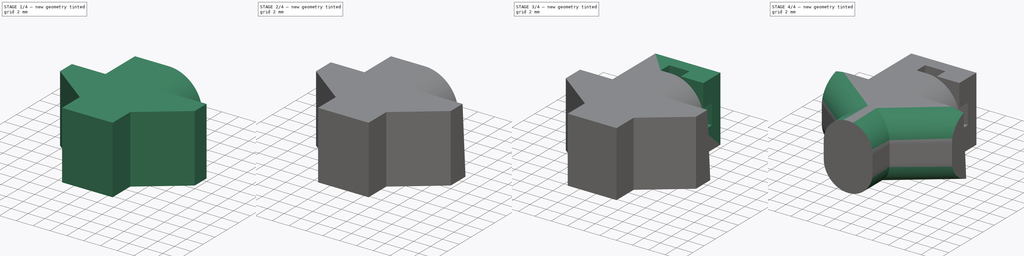
[diagram: build sequence overview — one tinted view per stage of 4, left to right]
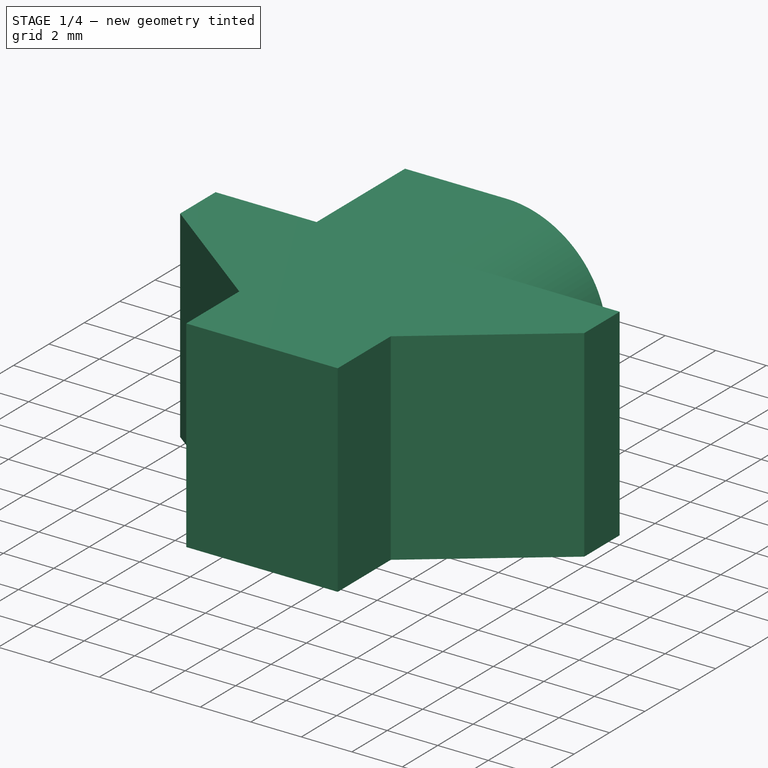
[diagram: stage 1 of 4 — iso view after this stage's code; geometry added in this stage tinted green]
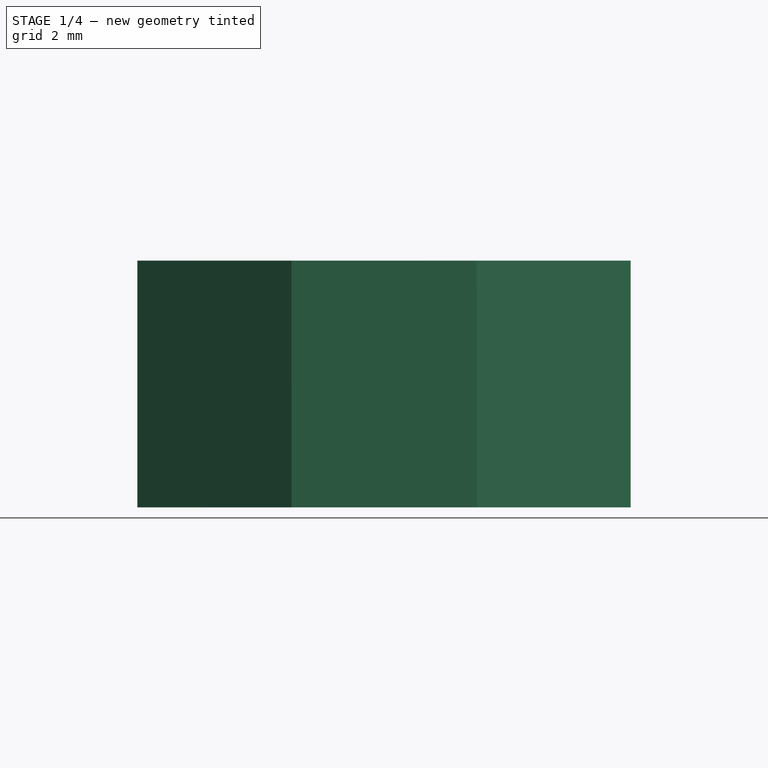
[diagram: stage 1 of 4 — front view after this stage's code; geometry added in this stage tinted green]
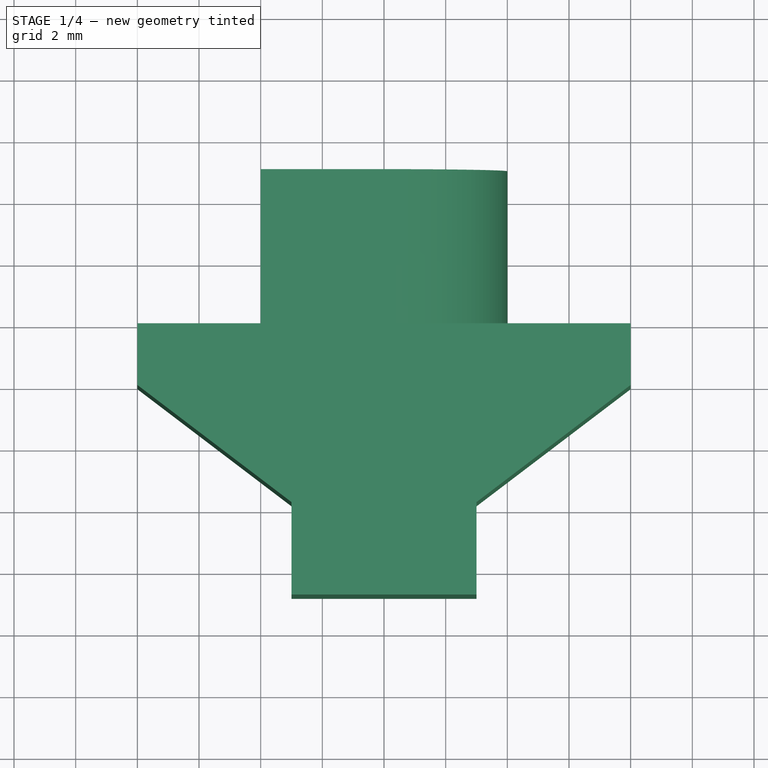
[diagram: stage 1 of 4 — top view after this stage's code; geometry added in this stage tinted green]
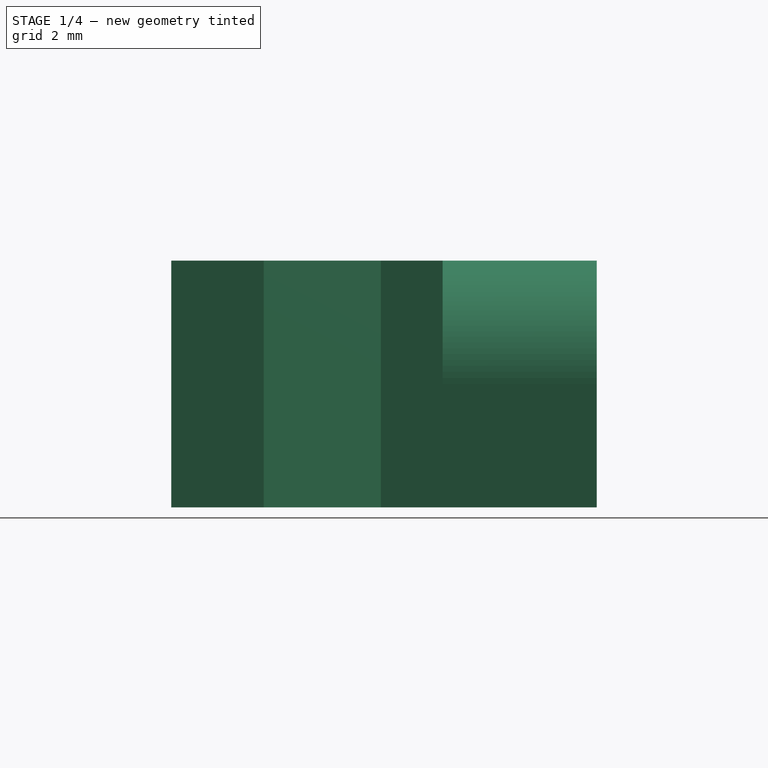
[diagram: stage 1 of 4 — right view after this stage's code; geometry added in this stage tinted green]
FCSTD DOCUMENT  (FreeCAD 1.0R39109 (Git))
Label: zip_tie_2x1_mm_to_4040_profile
License: All rights reserved
LicenseURL: https://en.wikipedia.org/wiki/All_rights_reserved
objects: Sketcher::SketchObject×7, PartDesign::Pad×5, PartDesign::Pocket×2, PartDesign::Fillet×2, PartDesign::Body×1
note: 42 computed .brp shape members not serialized (recipe doc carries the construction recipe); baked Part::Feature solids carry a one-line shape summary decoded from their .brp

FEATURE [Sketcher::SketchObject] Sketch
  ArcFitTolerance = 1e-06
  AttachmentSupport = -> [XY_Plane]
  FullyConstrained = true
  MakeInternals = false
  MapMode = 5
  sketch-geometry (23):
    g0: LineSegment [constr] StartX=-4.2 StartY=-10 StartZ=0 EndX=4.2 EndY=-10 EndZ=0
    g1: LineSegment [constr] StartX=-4.2 StartY=-10 StartZ=0 EndX=-14.2 EndY=0 EndZ=0
    g2: LineSegment [constr] StartX=4.2 StartY=-10 StartZ=0 EndX=14.2 EndY=0 EndZ=0
    g3: LineSegment [constr] StartX=-10 StartY=0 StartZ=0 EndX=-10 EndY=-4.2 EndZ=0
    g4: LineSegment [constr] StartX=10 StartY=-4.2 StartZ=0 EndX=10 EndY=0 EndZ=0
    g5: LineSegment [constr] StartX=-10 StartY=0 StartZ=0 EndX=-4.2 EndY=0 EndZ=0
    g6: LineSegment [constr] StartX=-4.2 StartY=4 StartZ=0 EndX=-14.2 EndY=4 EndZ=0
    g7: LineSegment [constr] StartX=-14.2 StartY=4 StartZ=0 EndX=-14.2 EndY=0 EndZ=0
    g8: LineSegment [constr] StartX=10 StartY=0 StartZ=0 EndX=4.20001 EndY=0 EndZ=0
    g9: LineSegment [constr] StartX=4.20001 StartY=4 StartZ=0 EndX=14.2 EndY=4 EndZ=0
    g10: LineSegment [constr] StartX=14.2 StartY=4 StartZ=0 EndX=14.2 EndY=0 EndZ=0
    g11: LineSegment [constr] StartX=-4.2 StartY=0 StartZ=0 EndX=-4.2 EndY=4 EndZ=0
    g12: LineSegment [constr] StartX=4.20001 StartY=0 StartZ=0 EndX=4.20001 EndY=4 EndZ=0
    g13: GeomPoint [constr] X=0 Y=-10 Z=0
    g14: LineSegment StartX=-8 StartY=0 StartZ=0 EndX=8 EndY=0 EndZ=0
    g15: GeomPoint X=0 Y=0 Z=0
    g16: LineSegment StartX=-3 StartY=-8.8 StartZ=0 EndX=3 EndY=-8.8 EndZ=0
    g17: LineSegment StartX=-3 StartY=-8.8 StartZ=0 EndX=-3 EndY=-5.8 EndZ=0
    g18: LineSegment StartX=3 StartY=-8.8 StartZ=0 EndX=3 EndY=-5.8 EndZ=0
    g19: LineSegment StartX=-8 StartY=0 StartZ=0 EndX=-8 EndY=-2 EndZ=0
    g20: LineSegment StartX=-8 StartY=-2 StartZ=0 EndX=-3 EndY=-5.8 EndZ=0
    g21: LineSegment StartX=3 StartY=-5.8 StartZ=0 EndX=8 EndY=-2 EndZ=0
    g22: LineSegment StartX=8 StartY=-2 StartZ=0 EndX=8 EndY=0 EndZ=0
  constraints (65):
    c: Horizontal(g0)
    c: Angle(g-1,g1) = 2.35619
    c: PointOnObject(g1,g-1)
    c: Angle(g-1,g2) = 0.785398
    c: Coincident(g2,g0)
    c: PointOnObject(g2,g-1)
    c: PointOnObject(g3,g-1)
    c: PointOnObject(g3,g1)
    c: Vertical(g3)
    c: PointOnObject(g4,g2)
    c: PointOnObject(g4,g-1)
    c: Vertical(g4)
    c: DistanceX(g3,g4) = 20
    c: Equal(g4,g3)
    c: Coincident(g5,g3)
    c: Horizontal(g6)
    c: Coincident(g7,g6)
    c: Coincident(g7,g1)
    c: Vertical(g7)
    c: Coincident(g8,g4)
    c: Horizontal(g9)
    c: Coincident(g10,g2)
    c: Vertical(g10)
    c: DistanceY(g7,g7) = 4
    c: Equal(g10,g7)
    c: Coincident(g9,g10)
    c: Equal(g6,g9)
    c: DistanceX(g0,g0) = 8.4
    c: Coincident(g11,g5)
    c: Coincident(g11,g6)
    c: Vertical(g11)
    c: Coincident(g12,g8)
    c: Coincident(g12,g9)
    c: Vertical(g12)
    c: Coincident(g1,g0)
    c: Symmetric(g0,g0,g13)
    c: PointOnObject(g13,g-2)
    c: DistanceY(g0,g9) = 14
    c: DistanceX(g5,g0) = 0
    c: Horizontal(g5)
    c: Horizontal(g8)
    c: DistanceX(g14,g14) = 16
    c: Horizontal(g14)
    c: Symmetric(g14,g14,g15)
    c: Coincident(g15,g-1)
    c: Horizontal(g16)
    c: Coincident(g17,g16)
    c: Vertical(g17)
    c: Coincident(g18,g16)
    c: Vertical(g18)
    c: DistanceY(g16) = -8.8
    c: Equal(g17,g18)
    c: DistanceX(g16,g16) = 6
    c: DistanceY(g17,g17) = 3
    c: Coincident(g19,g14)
    c: Vertical(g19)
    c: Coincident(g20,g19)
    c: Coincident(g20,g17)
    c: Coincident(g21,g18)
    c: Coincident(g22,g21)
    c: Coincident(g22,g14)
    c: Vertical(g22)
    c: Equal(g21,g20)
    c: Equal(g19,g22)
    c: DistanceY(g19,g19) = 2
FEATURE [PartDesign::Pad] Pad
  Direction = (0,0,1)
  Length = 8
  Length2 = 10
  Profile = -> Sketch
  ReferenceAxis = -> Sketch [N_Axis]
  Refine = true
  Suppressed = false
  Type = 0
FEATURE [Sketcher::SketchObject] Sketch001
  ArcFitTolerance = 1e-06
  AttachmentSupport = -> [Pad]
  FullyConstrained = true
  MakeInternals = false
  MapMode = 5
  Placement = pos=(0,0,0) rot=(0,0.707107,0.707107;3.14159rad)
  sketch-geometry (7):
    g0: Circle [constr] CenterX=0 CenterY=4 CenterZ=0 NormalX=0 NormalY=0 NormalZ=1 AngleXU=0 Radius=4
    g1: LineSegment StartX=-4 StartY=4 StartZ=0 EndX=-4 EndY=0 EndZ=0
    g2: LineSegment StartX=4 StartY=4 StartZ=0 EndX=4 EndY=8 EndZ=0
    g3: LineSegment StartX=-4 StartY=0 StartZ=0 EndX=-9e-16 EndY=0 EndZ=0
    g4: LineSegment StartX=4 StartY=8 StartZ=0 EndX=4e-16 EndY=8 EndZ=0
    g5: ArcOfCircle CenterX=0 CenterY=4 CenterZ=0 NormalX=0 NormalY=0 NormalZ=1 AngleXU=0 Radius=4 StartAngle=4.71239 EndAngle=6.28319
    g6: ArcOfCircle CenterX=0 CenterY=4 CenterZ=0 NormalX=0 NormalY=0 NormalZ=1 AngleXU=0 Radius=4 StartAngle=1.5708 EndAngle=3.14159
  constraints (17):
    c: Diameter(g0) = 8
    c: PointOnObject(g0,g-2)
    c: DistanceY(g0) = 4
    c: PointOnObject(g1,g-1)
    c: Vertical(g1)
    c: Vertical(g2)
    c: Coincident(g3,g1)
    c: Coincident(g3,g-1)
    c: Coincident(g4,g2)
    c: Tangent(g4,g0) = -1.5708
    c: Horizontal(g4)
    c: Coincident(g5,g0)
    c: Coincident(g5,g3)
    c: Tangent(g5,g2) = -1.5708
    c: Coincident(g6,g4)
    c: Coincident(g6,g0)
    c: Tangent(g6,g1) = -1.5708
FEATURE [PartDesign::Pad] Pad001
  BaseFeature = -> Pad
  Direction = (0,1,-2e-16)
  Length = 5
  Length2 = 10
  Profile = -> Sketch001
  ReferenceAxis = -> Sketch001 [N_Axis]
  Refine = true
  Suppressed = false
  Type = 0
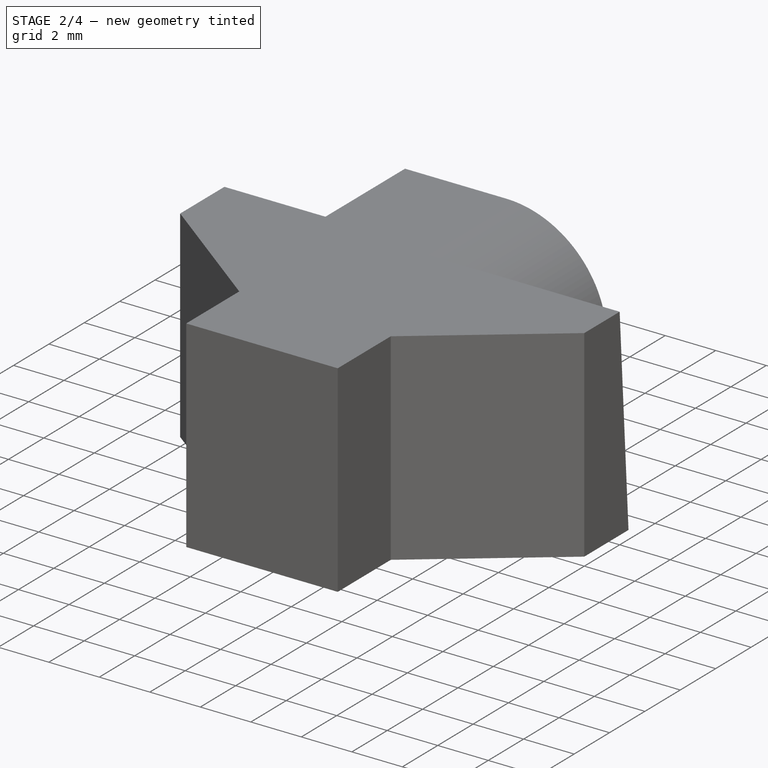
[diagram: stage 2 of 4 — iso view after this stage's code; geometry added in this stage tinted green]
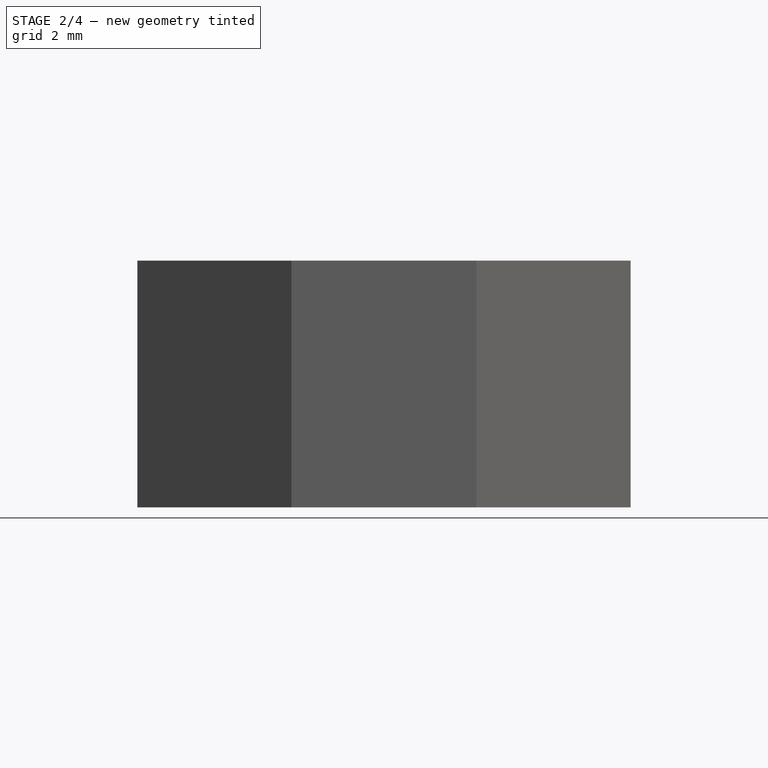
[diagram: stage 2 of 4 — front view after this stage's code; geometry added in this stage tinted green]
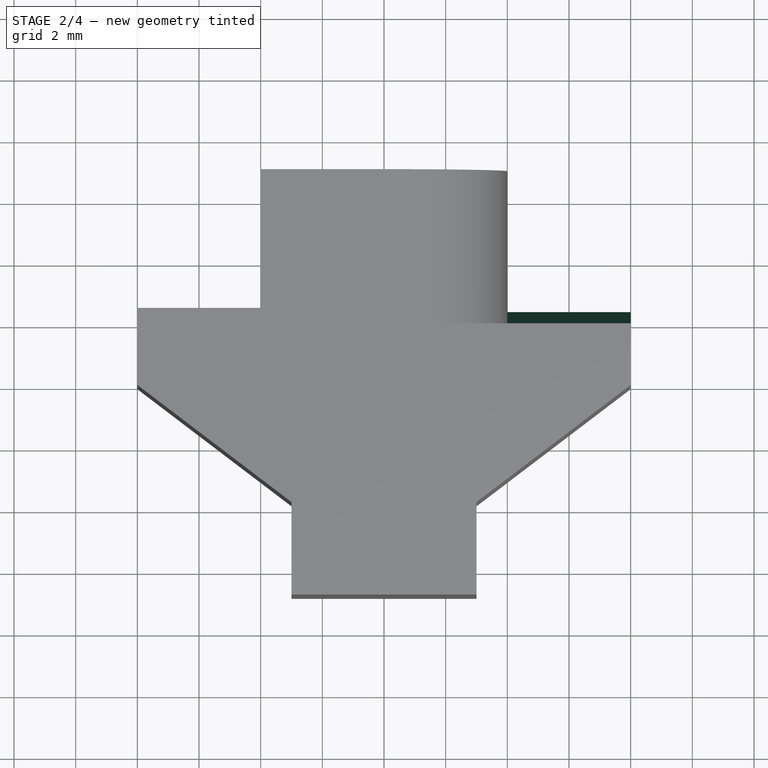
[diagram: stage 2 of 4 — top view after this stage's code; geometry added in this stage tinted green]
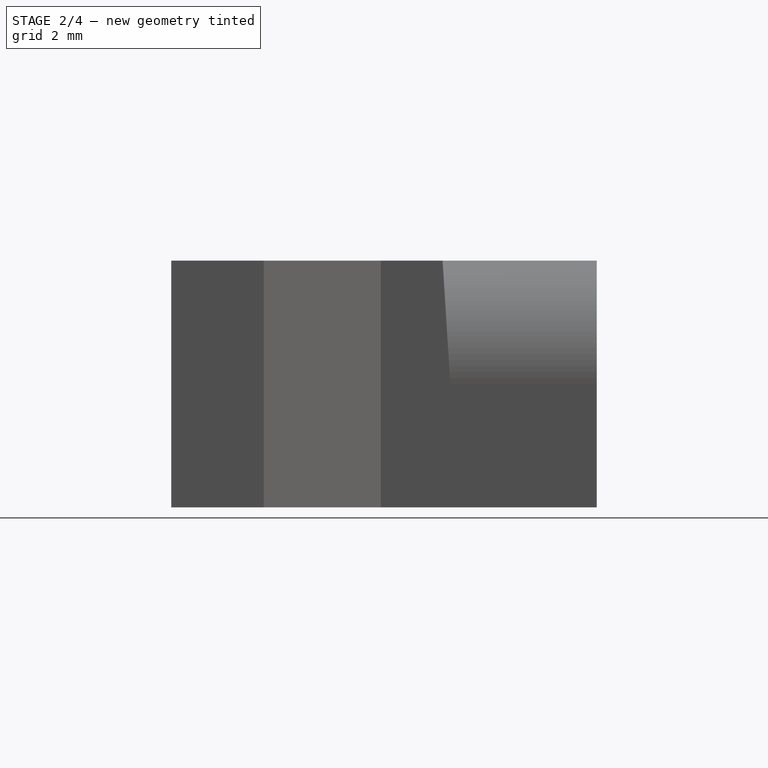
[diagram: stage 2 of 4 — right view after this stage's code; geometry added in this stage tinted green]
FEATURE [Sketcher::SketchObject] Sketch002
  ArcFitTolerance = 1e-06
  AttachmentSupport = -> [Pad001]
  FullyConstrained = true
  MakeInternals = false
  MapMode = 5
  Placement = pos=(4,0,0) rot=(0.57735,0.57735,0.57735;2.0944rad)
  sketch-geometry (3):
    g0: LineSegment StartX=0 StartY=0 StartZ=0 EndX=0 EndY=8 EndZ=0
    g1: LineSegment StartX=0 StartY=8 StartZ=0 EndX=0.5 EndY=0 EndZ=0
    g2: LineSegment StartX=0.5 StartY=0 StartZ=0 EndX=0 EndY=0 EndZ=0
  constraints (8):
    c: Coincident(g0,g-1)
    c: PointOnObject(g0,g-2)
    c: Coincident(g1,g0)
    c: PointOnObject(g1,g-1)
    c: Coincident(g2,g1)
    c: Coincident(g2,g0)
    c: DistanceX(g2,g2) = 0.5
    c: DistanceY(g0) = 8
FEATURE [PartDesign::Pad] Pad002
  BaseFeature = -> Pad001
  Direction = (1,0,0)
  Length = 4
  Length2 = 10
  Profile = -> Sketch002
  ReferenceAxis = -> Sketch002 [N_Axis]
  Refine = true
  Suppressed = false
  Type = 0
FEATURE [Sketcher::SketchObject] Sketch003
  ArcFitTolerance = 1e-06
  AttachmentSupport = -> [Pad002]
  FullyConstrained = true
  MakeInternals = false
  MapMode = 5
  Placement = pos=(-4,0,0) rot=(0.57735,-0.57735,-0.57735;2.0944rad)
  sketch-geometry (3):
    g0: LineSegment StartX=0 StartY=0 StartZ=0 EndX=0 EndY=8 EndZ=0
    g1: LineSegment StartX=0 StartY=8 StartZ=0 EndX=-0.5 EndY=8 EndZ=0
    g2: LineSegment StartX=-0.5 StartY=8 StartZ=0 EndX=0 EndY=0 EndZ=0
  constraints (8):
    c: Coincident(g0,g-1)
    c: PointOnObject(g0,g-2)
    c: Distance(g1) = 0.5
    c: Coincident(g1,g0)
    c: Horizontal(g1)
    c: Coincident(g2,g1)
    c: Coincident(g2,g0)
    c: DistanceY(g0) = 8
FEATURE [PartDesign::Pad] Pad003
  BaseFeature = -> Pad002
  Direction = (-1,0,0)
  Length = 4
  Length2 = 10
  Profile = -> Sketch003
  ReferenceAxis = -> Sketch003 [N_Axis]
  Refine = true
  Suppressed = false
  Type = 0
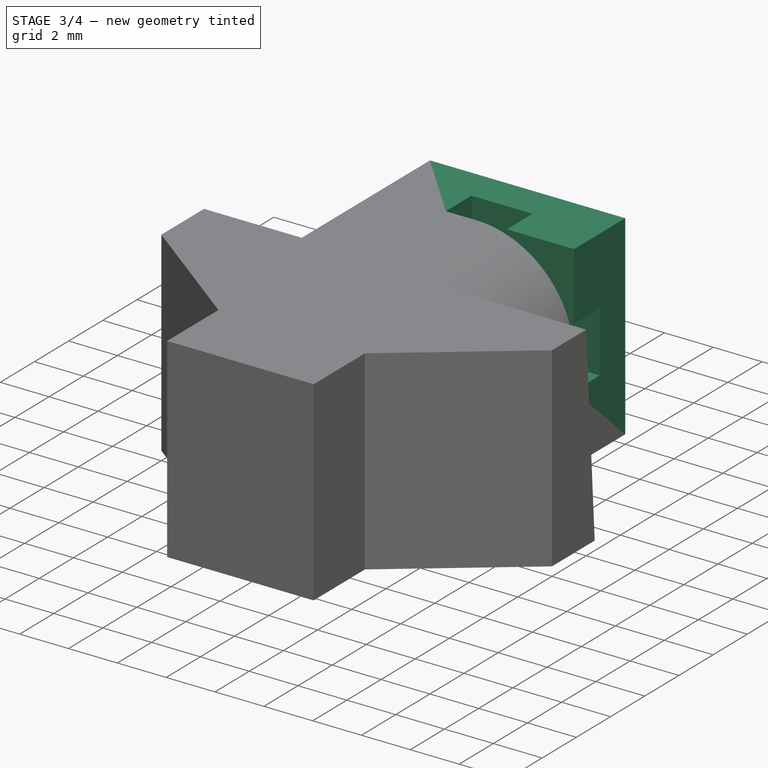
[diagram: stage 3 of 4 — iso view after this stage's code; geometry added in this stage tinted green]
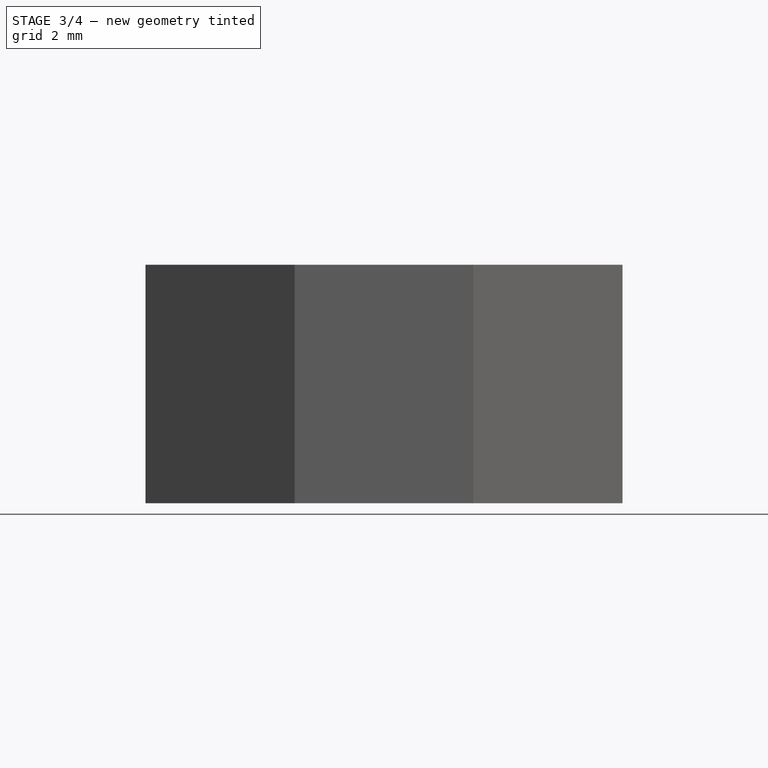
[diagram: stage 3 of 4 — front view after this stage's code; geometry added in this stage tinted green]
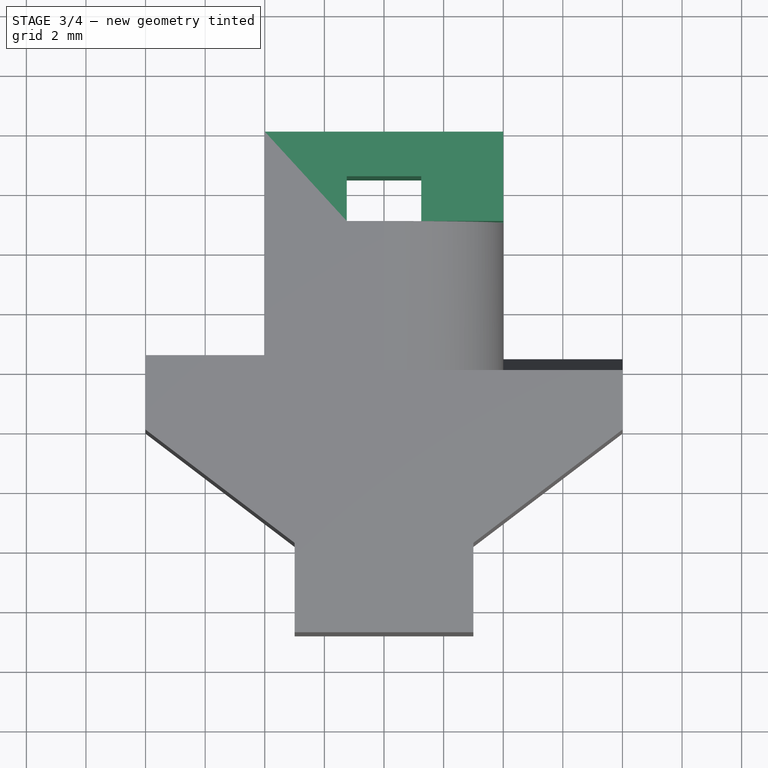
[diagram: stage 3 of 4 — top view after this stage's code; geometry added in this stage tinted green]
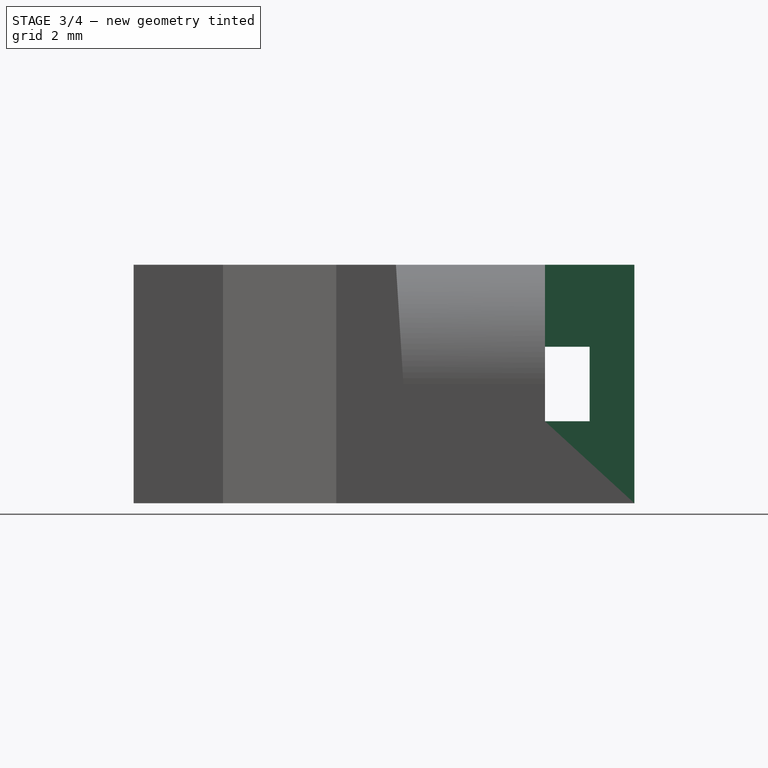
[diagram: stage 3 of 4 — right view after this stage's code; geometry added in this stage tinted green]
FEATURE [Sketcher::SketchObject] Sketch004
  ArcFitTolerance = 1e-06
  AttachmentSupport = -> [Pad003]
  FullyConstrained = true
  MakeInternals = false
  MapMode = 5
  Placement = pos=(0,5,0) rot=(0,0.707107,0.707107;3.14159rad)
  sketch-geometry (4):
    g0: LineSegment StartX=-4 StartY=8 StartZ=0 EndX=-4 EndY=0 EndZ=0
    g1: LineSegment StartX=-4 StartY=0 StartZ=0 EndX=4 EndY=0 EndZ=0
    g2: LineSegment StartX=4 StartY=0 StartZ=0 EndX=4 EndY=8 EndZ=0
    g3: LineSegment StartX=4 StartY=8 StartZ=0 EndX=-4 EndY=8 EndZ=0
  constraints (11):
    c: Coincident(g0,g1)
    c: Coincident(g1,g2)
    c: Coincident(g2,g3)
    c: Coincident(g3,g0)
    c: Vertical(g0)
    c: Vertical(g2)
    c: Horizontal(g1)
    c: Horizontal(g3)
    c: Equal(g3,g2)
    c: DistanceX(g3,g3) = 8
    c: Symmetric(g1,g1,g-1)
FEATURE [PartDesign::Pad] Pad004
  BaseFeature = -> Pad003
  Direction = (0,1,-2e-16)
  Length = 3
  Length2 = 10
  Profile = -> Sketch004
  ReferenceAxis = -> Sketch004 [N_Axis]
  Refine = true
  Suppressed = false
  Type = 0
FEATURE [Sketcher::SketchObject] Sketch005
  ArcFitTolerance = 1e-06
  AttachmentSupport = -> [Pad004]
  FullyConstrained = true
  MakeInternals = false
  MapMode = 5
  Placement = pos=(0,0,8) rot=(0,0,1;0rad)
  sketch-geometry (5):
    g0: LineSegment StartX=-1.25 StartY=5 StartZ=0 EndX=1.25 EndY=5 EndZ=0
    g1: LineSegment StartX=1.25 StartY=5 StartZ=0 EndX=1.25 EndY=6.5 EndZ=0
    g2: LineSegment StartX=1.25 StartY=6.5 StartZ=0 EndX=-1.25 EndY=6.5 EndZ=0
    g3: LineSegment StartX=-1.25 StartY=6.5 StartZ=0 EndX=-1.25 EndY=5 EndZ=0
    g4: GeomPoint X=0 Y=5 Z=0
  constraints (13):
    c: Coincident(g0,g1)
    c: Coincident(g1,g2)
    c: Coincident(g2,g3)
    c: Coincident(g3,g0)
    c: Horizontal(g0)
    c: Horizontal(g2)
    c: Vertical(g1)
    c: Vertical(g3)
    c: Distance(g1,g3) = 2.5
    c: Distance(g0,g2) = 1.5
    c: Symmetric(g0,g0,g4)
    c: PointOnObject(g4,g-2)
    c: DistanceY(g4) = 5
FEATURE [PartDesign::Pocket] Pocket
  BaseFeature = -> Pad004
  Direction = (0,0,-1)
  Length = 5
  Length2 = 5
  Profile = -> Sketch005
  ReferenceAxis = -> Sketch005 [N_Axis]
  Refine = true
  Suppressed = false
  Type = 1
FEATURE [Sketcher::SketchObject] Sketch006
  ArcFitTolerance = 1e-06
  AttachmentSupport = -> [Pocket]
  FullyConstrained = true
  MakeInternals = false
  MapMode = 5
  Placement = pos=(4,0,0) rot=(0.57735,0.57735,0.57735;2.0944rad)
  sketch-geometry (5):
    g0: LineSegment StartX=5 StartY=5.25 StartZ=0 EndX=5 EndY=2.75 EndZ=0
    g1: LineSegment StartX=5 StartY=2.75 StartZ=0 EndX=6.5 EndY=2.75 EndZ=0
    g2: LineSegment StartX=6.5 StartY=2.75 StartZ=0 EndX=6.5 EndY=5.25 EndZ=0
    g3: LineSegment StartX=6.5 StartY=5.25 StartZ=0 EndX=5 EndY=5.25 EndZ=0
    g4: GeomPoint X=5 Y=4 Z=0
  constraints (13):
    c: Coincident(g0,g1)
    c: Coincident(g1,g2)
    c: Coincident(g2,g3)
    c: Coincident(g3,g0)
    c: Vertical(g0)
    c: Vertical(g2)
    c: Horizontal(g1)
    c: Horizontal(g3)
    c: Distance(g0,g2) = 1.5
    c: Distance(g1,g3) = 2.5
    c: DistanceX(g0) = 5
    c: Symmetric(g0,g0,g4)
    c: DistanceY(g4) = 4
FEATURE [PartDesign::Pocket] Pocket001
  BaseFeature = -> Pocket
  Direction = (-1,0,0)
  Length = 5
  Length2 = 5
  Profile = -> Sketch006
  ReferenceAxis = -> Sketch006 [N_Axis]
  Refine = true
  Suppressed = false
  Type = 1
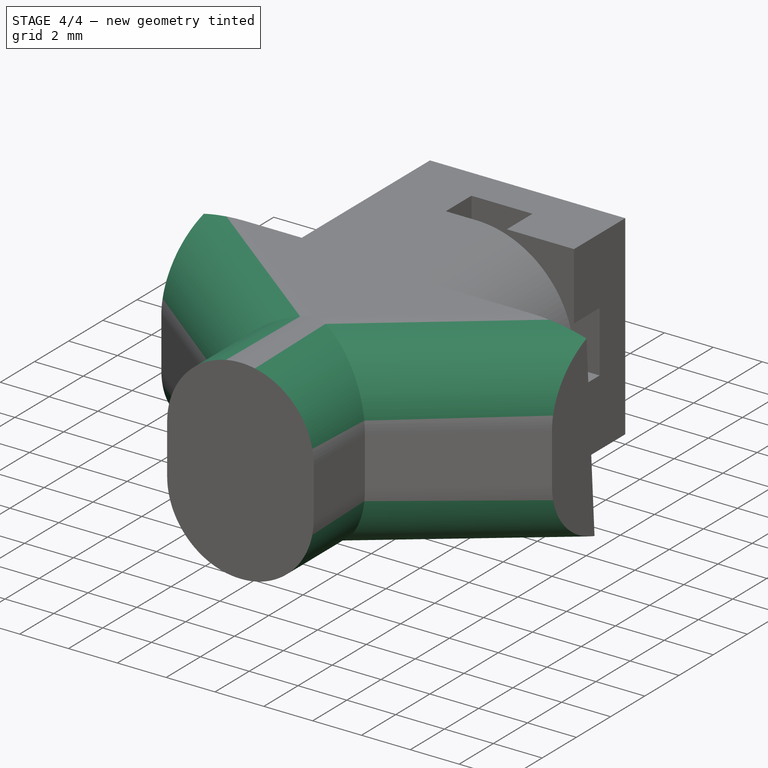
[diagram: stage 4 of 4 — iso view after this stage's code; geometry added in this stage tinted green]
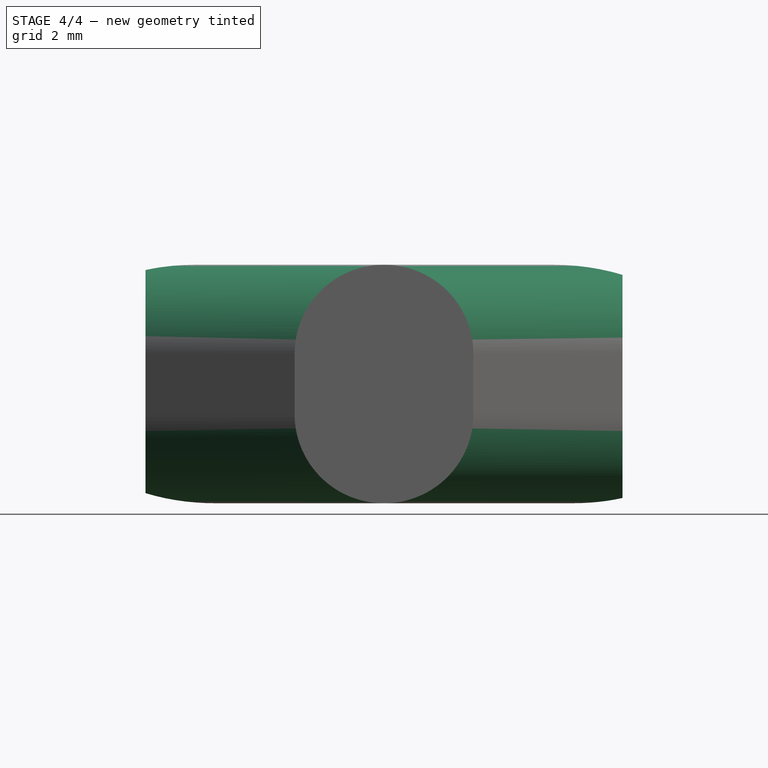
[diagram: stage 4 of 4 — front view after this stage's code; geometry added in this stage tinted green]
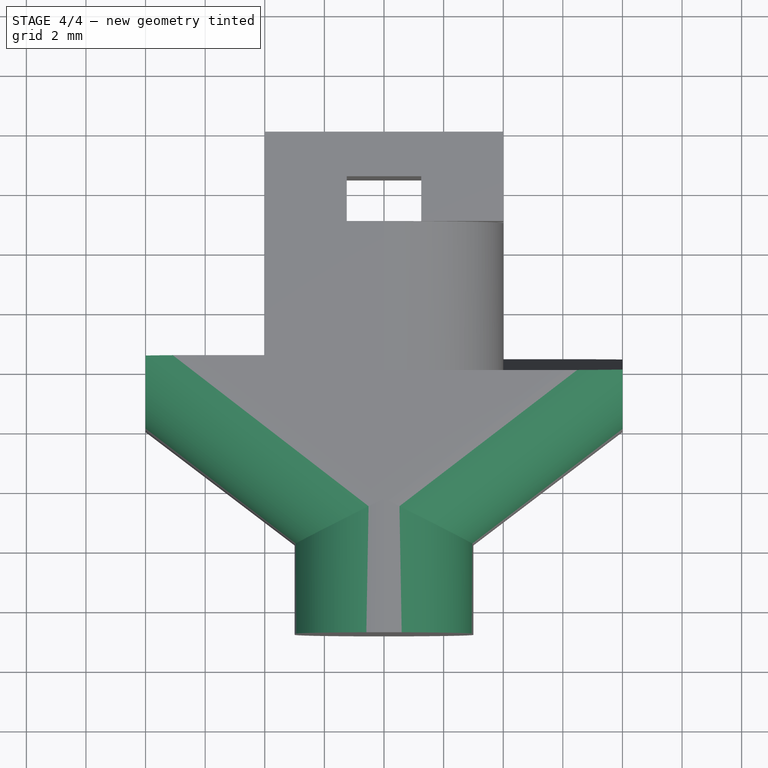
[diagram: stage 4 of 4 — top view after this stage's code; geometry added in this stage tinted green]
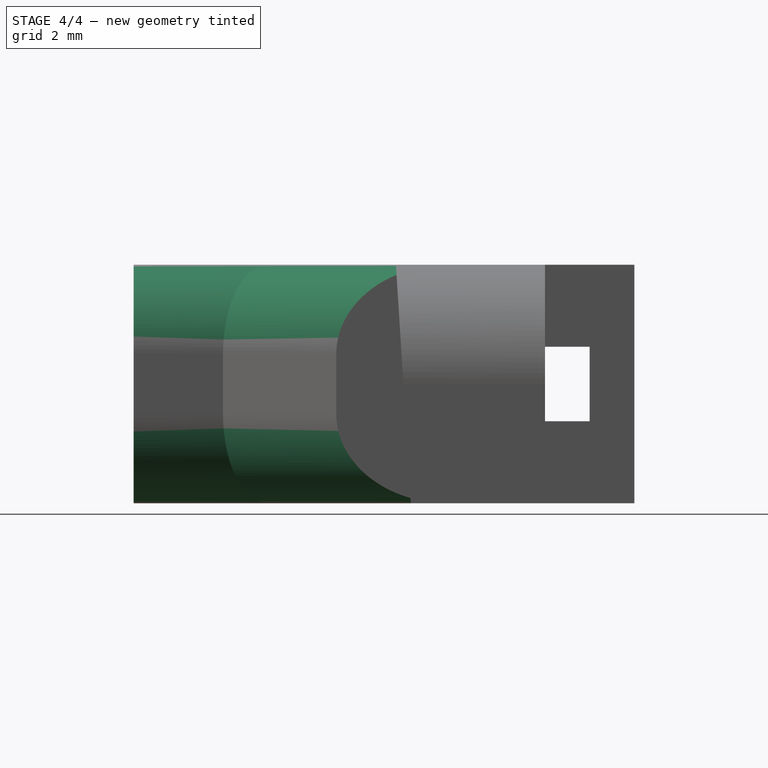
[diagram: stage 4 of 4 — right view after this stage's code; geometry added in this stage tinted green]
FEATURE [PartDesign::Fillet] Fillet
  Base = -> Pocket001 [Edge21,Edge19,Edge68,Edge64]
  BaseFeature = -> Pocket001
  Radius = 2.99
  Refine = true
  SupportTransform = false
  Suppressed = false
  UseAllEdges = false
FEATURE [PartDesign::Fillet] Fillet001
  Base = -> Fillet [Edge6,Edge7,Edge36,Edge41]
  BaseFeature = -> Fillet
  Radius = 2.99
  Refine = true
  SupportTransform = false
  Suppressed = false
  UseAllEdges = false
FEATURE [PartDesign::Body] Body
  AllowCompound = false
  Group = -> [Sketch,Pad,Sketch001,Pad001,Sketch002,Pad002,Sketch003,Pad003,Sketch004,Pad004,Sketch005,Pocket,Sketch006,Pocket001,Fillet,Fillet001]
  Origin = -> Origin
  Tip = -> Fillet001
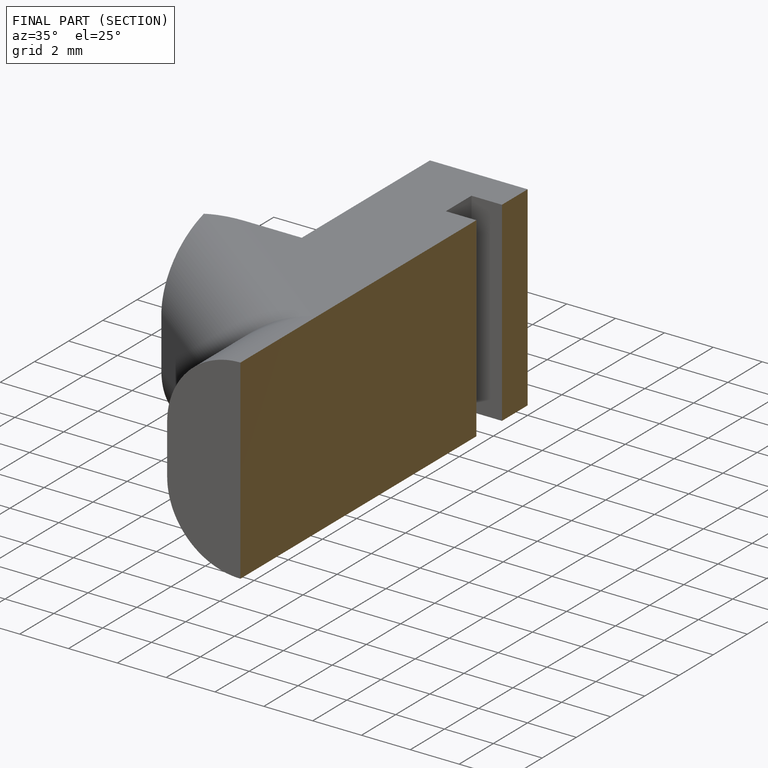
[diagram: finished part — half-section view (interior)]
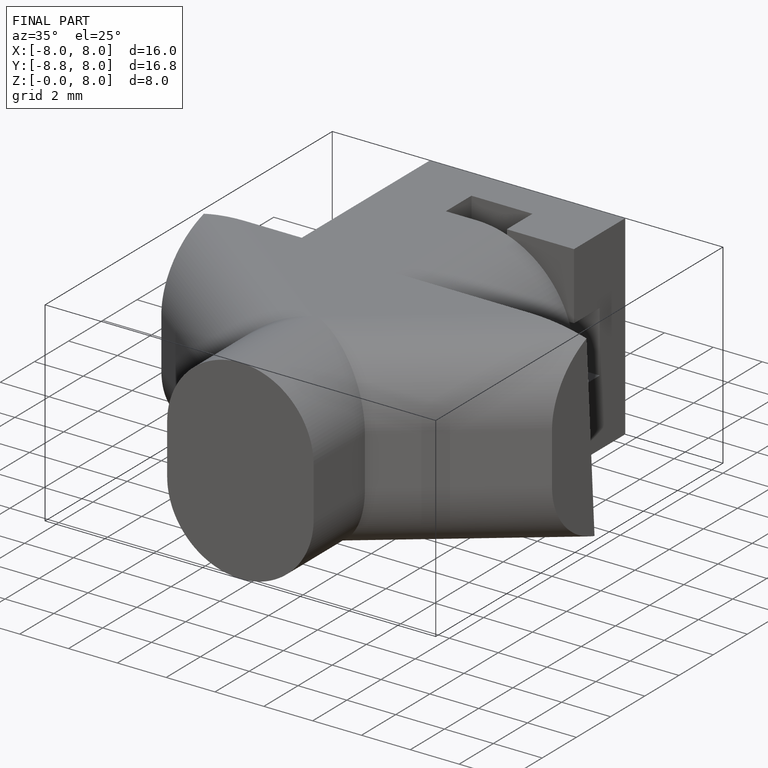
[diagram: finished part — iso view with bounding-box wireframe]
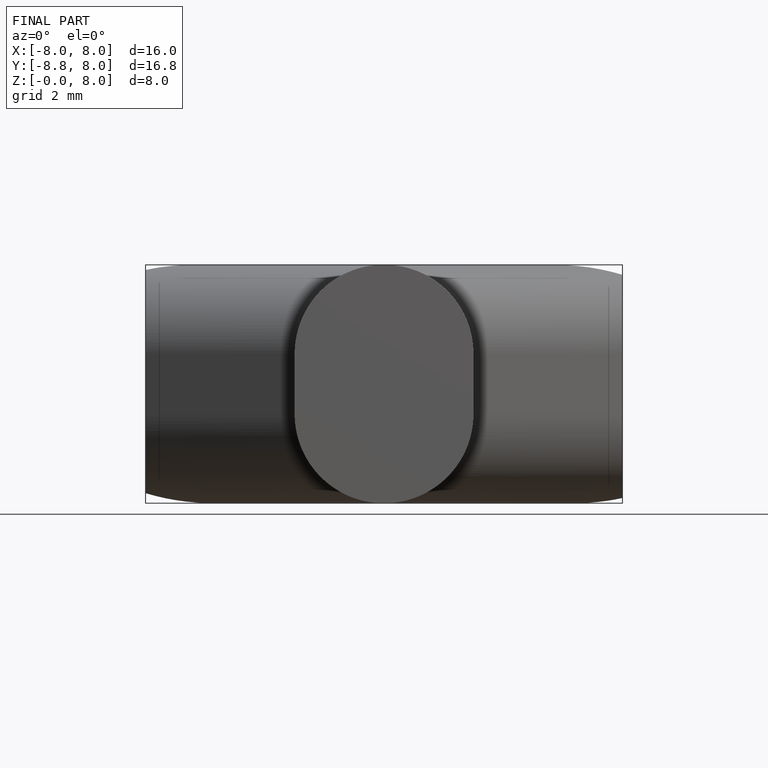
[diagram: finished part — front view with bounding-box wireframe]
